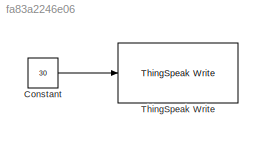
MODEL slx_fa83a2246e06
KIND model
CONFIG AbsTol = auto
CONFIG FixedStep = auto
CONFIG MaxStep = auto
CONFIG MinStep = auto
CONFIG RelTol = 1e-3
CONFIG SampleTimeConstraint = Unconstrained
CONFIG Solver = FixedStepAuto
CONFIG SolverMode = Auto
CONFIG SolverName = FixedStepAuto
CONFIG StartTime = 0.0
CONFIG StopTime = 10.0
BLOCK [Constant] Constant
  Value = 30
BLOCK [Reference] ThingSpeak Write  REF=raspberrypilib/ThingSpeak Write
  Ports = [1]
  SourceBlock = raspberrypilib/ThingSpeak Write
  SourceType = realtime.internal.linux_thingspeak
LINE Constant:1 -> ThingSpeak Write:1
